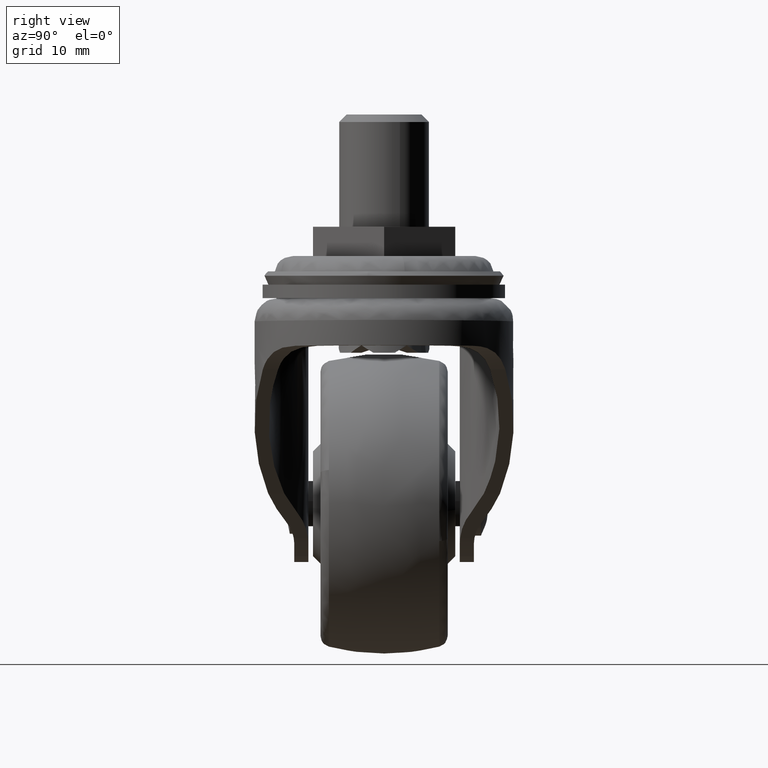
[diagram: clean part render]
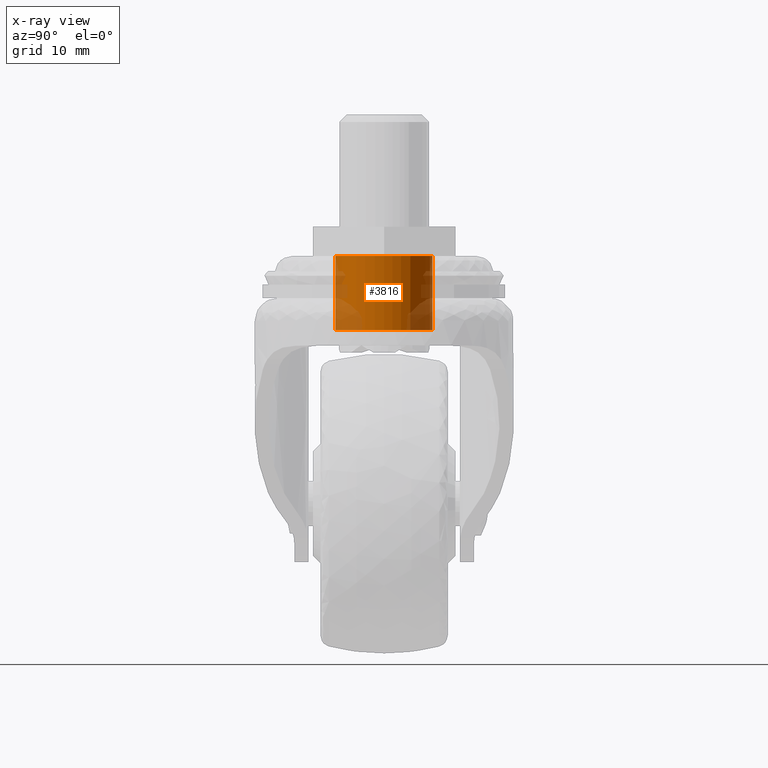
[diagram: x-ray — body ghosted, one internal face saturated and labeled with its STEP entity id]
A machine part, right view, then the same camera in x-ray: the body is ghosted and one INTERNAL B-rep face — a face not visible from any outside direction — is saturated and labeled: STEP entity #3816.
In plain terms, the highlighted face is a freeform B-spline surface patch.
Its self-contained STEP definition (entity closure, byte-faithful):
#3714=CARTESIAN_POINT('',(-0.767222525268921,6.454561921363752,-2.652150944280535));
#3715=CARTESIAN_POINT('',(-0.582495736146848,6.476519500415857,-2.652150944280534));
#3716=CARTESIAN_POINT('',(-0.396815506976565,6.487876189742053,-2.652150944280535));
#3717=CARTESIAN_POINT('',(6.091060682765488,6.884691696718619,-2.652150944280535));
#3718=CARTESIAN_POINT('',(6.487876189742053,0.396815506976565,-2.652150944280535));
#3719=CARTESIAN_POINT('',(6.884691696718619,-6.091060682765488,-2.652150944280535));
#3720=CARTESIAN_POINT('',(0.396815506976565,-6.487876189742053,-2.652150944280535));
#3721=CARTESIAN_POINT('',(-0.767222525268921,6.454561921363752,-13.073914351392986));
#3722=CARTESIAN_POINT('',(-0.582495736146848,6.476519500415857,-13.073914351392986));
#3723=CARTESIAN_POINT('',(-0.396815506976565,6.487876189742053,-13.073914351392990));
#3724=CARTESIAN_POINT('',(6.091060682765488,6.884691696718619,-13.073914351392990));
#3725=CARTESIAN_POINT('',(6.487876189742053,0.396815506976565,-13.073914351392990));
#3726=CARTESIAN_POINT('',(6.884691696718619,-6.091060682765488,-13.073914351392990));
#3727=CARTESIAN_POINT('',(0.396815506976565,-6.487876189742053,-13.073914351392990));
#3735=(BOUNDED_SURFACE()B_SPLINE_SURFACE(2,1,((#3714,#3721),(#3715,#3722),(#3716,#3723),(#3717,#3724),(#3718,#3725),(#3719,#3726),(#3720,#3727)),.UNSPECIFIED.,.F.,.F.,.U.)B_SPLINE_SURFACE_WITH_KNOTS((3,2,2,3),(2,2),(0.0,0.430782104868014,11.200334726568350,21.969887348268681),(0.0,10.421763407112460),.UNSPECIFIED.)GEOMETRIC_REPRESENTATION_ITEM()RATIONAL_B_SPLINE_SURFACE(((0.977505800795127,0.977505800795127),(0.988284271247462,0.988284271247462),(1.0,1.0),(0.707106781186548,0.707106781186548),(1.0,1.0),(0.707106781186548,0.707106781186548),(1.0,1.0)))REPRESENTATION_ITEM('')SURFACE());
#3736=CARTESIAN_POINT('',(-0.767222525306018,6.454561921359341,-12.819725000000000));
#3737=VERTEX_POINT('',#3736);
#3738=CARTESIAN_POINT('',(6.499999999999920,0.0,-12.819725000000000));
#3739=VERTEX_POINT('',#3738);
#3740=CARTESIAN_POINT('',(-0.767222525306018,6.454561921359341,-12.819725000000000));
#3741=CARTESIAN_POINT('',(-0.384956777774901,6.499999999999920,-12.819725000000000));
#3742=CARTESIAN_POINT('',(0.0,6.499999999999920,-12.819725000000000));
#3743=CARTESIAN_POINT('',(6.499999999999920,6.499999999999920,-12.819725000000000));
#3744=CARTESIAN_POINT('',(6.499999999999920,0.0,-12.819725000000000));
#3752=(BOUNDED_CURVE()B_SPLINE_CURVE(2,(#3740,#3741,#3742,#3743,#3744),.UNSPECIFIED.,.F.,.U.)B_SPLINE_CURVE_WITH_KNOTS((3,2,3),(0.229562473513701,0.250000000000000,0.500000000000000),.UNSPECIFIED.)CURVE()GEOMETRIC_REPRESENTATION_ITEM()RATIONAL_B_SPLINE_CURVE((0.956026754184078,0.976055948331371,1.0,0.707106781186547,1.0))REPRESENTATION_ITEM(''));
#3753=EDGE_CURVE('',#3737,#3739,#3752,.T.);
#3754=ORIENTED_EDGE('',*,*,#3753,.T.);
#3755=CARTESIAN_POINT('',(0.396807333803059,-6.487876689624427,-12.819724999999920));
#3756=VERTEX_POINT('',#3755);
#3757=CARTESIAN_POINT('',(6.499999999999920,0.0,-12.819725000000000));
#3758=CARTESIAN_POINT('',(6.499999999999920,-6.114597152206673,-12.819725000000002));
#3759=CARTESIAN_POINT('',(0.396807333803059,-6.487876689624427,-12.819724999999920));
#3767=(BOUNDED_CURVE()B_SPLINE_CURVE(2,(#3757,#3758,#3759),.UNSPECIFIED.,.F.,.U.)B_SPLINE_CURVE_WITH_KNOTS((3,3),(0.500000000000000,0.739333179609723),.UNSPECIFIED.)CURVE()GEOMETRIC_REPRESENTATION_ITEM()RATIONAL_B_SPLINE_CURVE((1.0,0.719603738621000,0.976072507534120))REPRESENTATION_ITEM(''));
#3768=EDGE_CURVE('',#3739,#3756,#3767,.T.);
#3769=ORIENTED_EDGE('',*,*,#3768,.T.);
#3770=CARTESIAN_POINT('',(0.396807434462545,-6.487876683468082,-2.900140555395645));
#3771=VERTEX_POINT('',#3770);
#3772=CARTESIAN_POINT('',(0.396807434462545,-6.487876683468082,-2.900140555395645));
#3773=CARTESIAN_POINT('',(0.396807333803059,-6.487876689624427,-12.819724999999920));
#3774=QUASI_UNIFORM_CURVE('',1,(#3772,#3773),.UNSPECIFIED.,.F.,.U.);
#3775=EDGE_CURVE('',#3771,#3756,#3774,.T.);
#3776=ORIENTED_EDGE('',*,*,#3775,.F.);
#3777=CARTESIAN_POINT('',(6.499999999999920,0.0,-2.900140555395645));
#3778=VERTEX_POINT('',#3777);
#3779=CARTESIAN_POINT('',(6.499999999999920,0.0,-2.900140555395645));
#3780=CARTESIAN_POINT('',(6.499999999999920,-6.114597057161361,-2.900140555395645));
#3781=CARTESIAN_POINT('',(0.396807434462545,-6.487876683468082,-2.900140555395644));
#3789=(BOUNDED_CURVE()B_SPLINE_CURVE(2,(#3779,#3780,#3781),.UNSPECIFIED.,.F.,.U.)B_SPLINE_CURVE_WITH_KNOTS((3,3),(0.500000000000000,0.739333176932656),.UNSPECIFIED.)CURVE()GEOMETRIC_REPRESENTATION_ITEM()RATIONAL_B_SPLINE_CURVE((1.0,0.719603741757379,0.976072501796646))REPRESENTATION_ITEM(''));
#3790=EDGE_CURVE('',#3778,#3771,#3789,.T.);
#3791=ORIENTED_EDGE('',*,*,#3790,.F.);
#3792=CARTESIAN_POINT('',(-0.767222525306018,6.454561921359341,-2.900140555395645));
#3793=VERTEX_POINT('',#3792);
#3794=CARTESIAN_POINT('',(-0.767222525306018,6.454561921359341,-2.900140555395644));
#3795=CARTESIAN_POINT('',(-0.384956777774901,6.499999999999920,-2.900140555395645));
#3796=CARTESIAN_POINT('',(0.0,6.499999999999920,-2.900140555395645));
#3797=CARTESIAN_POINT('',(6.499999999999920,6.499999999999920,-2.900140555395644));
#3798=CARTESIAN_POINT('',(6.499999999999920,0.0,-2.900140555395645));
#3806=(BOUNDED_CURVE()B_SPLINE_CURVE(2,(#3794,#3795,#3796,#3797,#3798),.UNSPECIFIED.,.F.,.U.)B_SPLINE_CURVE_WITH_KNOTS((3,2,3),(0.229562473513701,0.250000000000000,0.500000000000000),.UNSPECIFIED.)CURVE()GEOMETRIC_REPRESENTATION_ITEM()RATIONAL_B_SPLINE_CURVE((0.956026754184078,0.976055948331371,1.0,0.707106781186547,1.0))REPRESENTATION_ITEM(''));
#3807=EDGE_CURVE('',#3793,#3778,#3806,.T.);
#3808=ORIENTED_EDGE('',*,*,#3807,.F.);
#3809=CARTESIAN_POINT('',(-0.767222525306018,6.454561921359341,-2.900140555395645));
#3810=CARTESIAN_POINT('',(-0.767222525306018,6.454561921359341,-12.819725000000000));
#3811=QUASI_UNIFORM_CURVE('',1,(#3809,#3810),.UNSPECIFIED.,.F.,.U.);
#3812=EDGE_CURVE('',#3793,#3737,#3811,.T.);
#3813=ORIENTED_EDGE('',*,*,#3812,.T.);
#3814=EDGE_LOOP('',(#3754,#3769,#3776,#3791,#3808,#3813));
#3815=FACE_OUTER_BOUND('',#3814,.T.);
#3816=ADVANCED_FACE('',(#3815),#3735,.F.);